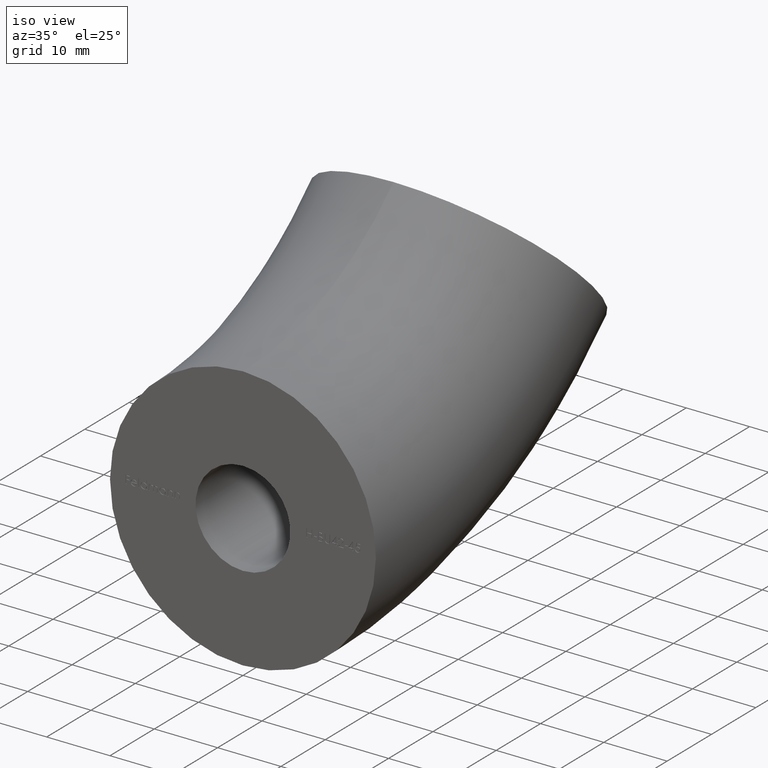
[diagram: clean part render]
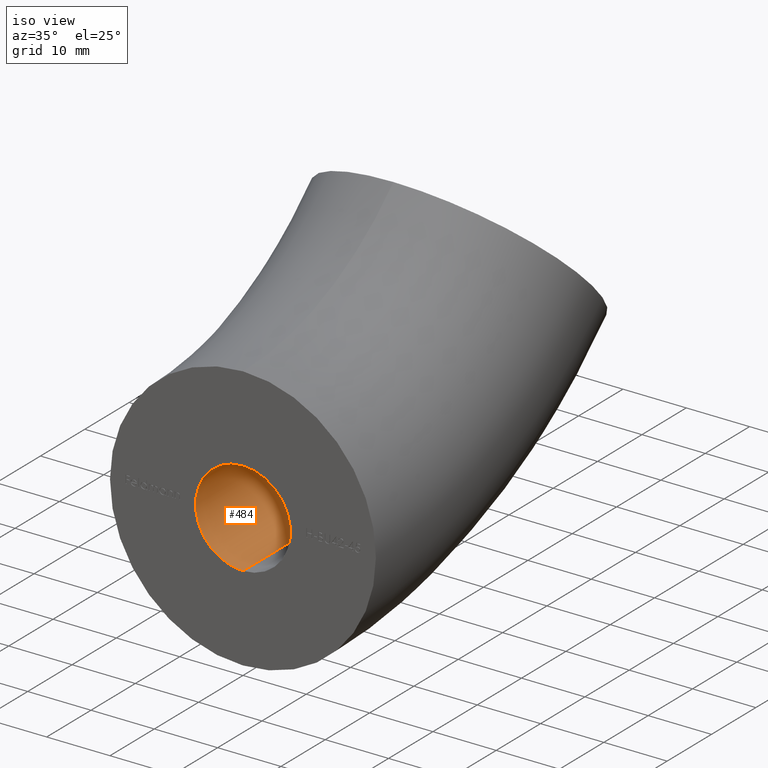
[diagram: same view with one face highlighted and labeled with its STEP entity id]
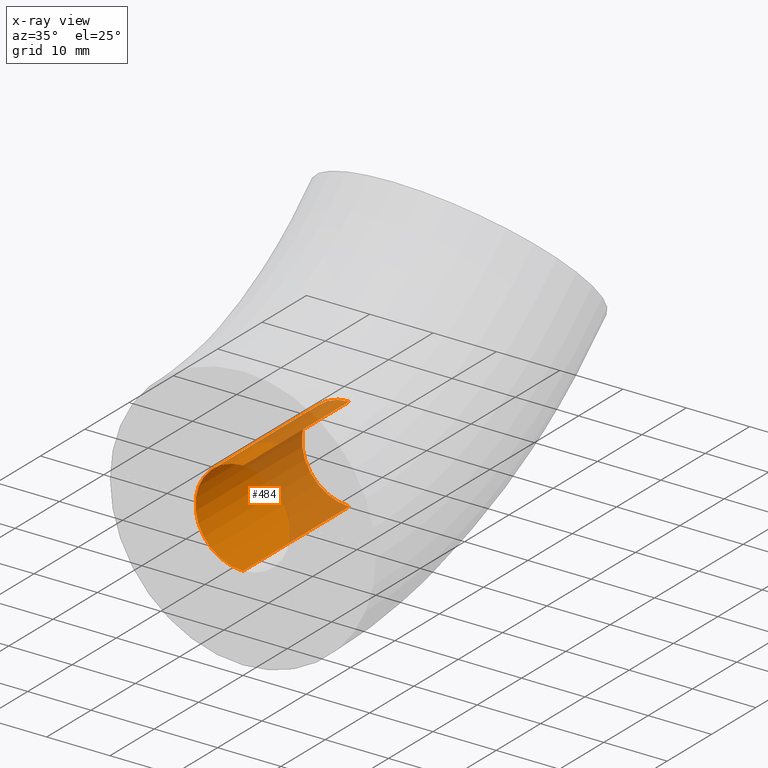
[diagram: x-ray of the same camera — body ghosted, the highlighted face saturated]
A machine part, iso view. The second image highlights one B-rep face of the part: STEP entity #484.
The next image is the same camera in x-ray: the body ghosted, the highlighted face saturated — about 41% of this face is hidden behind the body in this view.
In plain terms, the highlighted cylindrical surface (partial cylindrical patch) has radius 7.5 mm, axis along (-0, -1, -0).
Its self-contained STEP definition (entity closure, byte-faithful):
#204 = CARTESIAN_POINT ( 'NONE',  ( 9.184850993605134139E-16, -6.368163355566210744E-16, 7.499999999999987566 ) ) ;
#283 = EDGE_CURVE ( 'NONE', #1979, #11252, #2507, .T. ) ;
#373 = DIRECTION ( 'NONE',  ( 0.000000000000000000, 0.000000000000000000, -1.000000000000000000 ) ) ;
#484 = ADVANCED_FACE ( 'NONE', ( #1259 ), #2923, .F. ) ;
#648 = ORIENTED_EDGE ( 'NONE', *, *, #283, .F. ) ;
#736 = DIRECTION ( 'NONE',  ( -0.000000000000000000, -1.000000000000000000, -0.000000000000000000 ) ) ;
#893 = AXIS2_PLACEMENT_3D ( 'NONE', #1216, #3808, #373 ) ;
#1216 = CARTESIAN_POINT ( 'NONE',  ( 0.000000000000000000, -6.368163355566210744E-16, 0.000000000000000000 ) ) ;
#1259 = FACE_OUTER_BOUND ( 'NONE', #5515, .T. ) ;
#1265 = DIRECTION ( 'NONE',  ( -0.000000000000000000, -1.000000000000000000, -0.000000000000000000 ) ) ;
#1421 = AXIS2_PLACEMENT_3D ( 'NONE', #1545, #8620, #10385 ) ;
#1545 = CARTESIAN_POINT ( 'NONE',  ( 0.000000000000000000, 23.99999999999999289, 0.000000000000000000 ) ) ;
#1593 = CARTESIAN_POINT ( 'NONE',  ( 0.000000000000000000, 0.000000000000000000, -7.499999999999985789 ) ) ;
#1705 = CIRCLE ( 'NONE', #893, 7.499999999999987566 ) ;
#1979 = VERTEX_POINT ( 'NONE', #8856 ) ;
#2507 = LINE ( 'NONE', #1593, #5984 ) ;
#2923 = CYLINDRICAL_SURFACE ( 'NONE', #5191, 7.499999999999985789 ) ;
#2980 = CARTESIAN_POINT ( 'NONE',  ( 0.000000000000000000, 0.000000000000000000, 0.000000000000000000 ) ) ;
#3598 = LINE ( 'NONE', #9961, #7051 ) ;
#3808 = DIRECTION ( 'NONE',  ( -0.000000000000000000, -1.000000000000000000, -0.000000000000000000 ) ) ;
#5191 = AXIS2_PLACEMENT_3D ( 'NONE', #2980, #1265, #7520 ) ;
#5515 = EDGE_LOOP ( 'NONE', ( #10698, #5804, #8031, #648 ) ) ;
#5804 = ORIENTED_EDGE ( 'NONE', *, *, #5884, .T. ) ;
#5884 = EDGE_CURVE ( 'NONE', #7291, #10016, #3598, .T. ) ;
#5984 = VECTOR ( 'NONE', #736, 1000.000000000000000 ) ;
#6014 = CIRCLE ( 'NONE', #1421, 7.499999999999984901 ) ;
#6435 = DIRECTION ( 'NONE',  ( -0.000000000000000000, -1.000000000000000000, -0.000000000000000000 ) ) ;
#6730 = CARTESIAN_POINT ( 'NONE',  ( 9.184850993605130195E-16, 23.99999999999999289, 7.499999999999984901 ) ) ;
#7051 = VECTOR ( 'NONE', #6435, 1000.000000000000000 ) ;
#7291 = VERTEX_POINT ( 'NONE', #6730 ) ;
#7520 = DIRECTION ( 'NONE',  ( 0.000000000000000000, 0.000000000000000000, -1.000000000000000000 ) ) ;
#8031 = ORIENTED_EDGE ( 'NONE', *, *, #9243, .T. ) ;
#8551 = CARTESIAN_POINT ( 'NONE',  ( 0.000000000000000000, -6.368163355566210744E-16, -7.499999999999987566 ) ) ;
#8620 = DIRECTION ( 'NONE',  ( -0.000000000000000000, -1.000000000000000000, -0.000000000000000000 ) ) ;
#8856 = CARTESIAN_POINT ( 'NONE',  ( 0.000000000000000000, 23.99999999999999289, -7.499999999999984901 ) ) ;
#9011 = EDGE_CURVE ( 'NONE', #7291, #1979, #6014, .T. ) ;
#9243 = EDGE_CURVE ( 'NONE', #10016, #11252, #1705, .T. ) ;
#9961 = CARTESIAN_POINT ( 'NONE',  ( 9.184850993605132167E-16, 0.000000000000000000, 7.499999999999985789 ) ) ;
#10016 = VERTEX_POINT ( 'NONE', #204 ) ;
#10385 = DIRECTION ( 'NONE',  ( 0.000000000000000000, 0.000000000000000000, -1.000000000000000000 ) ) ;
#10698 = ORIENTED_EDGE ( 'NONE', *, *, #9011, .F. ) ;
#11252 = VERTEX_POINT ( 'NONE', #8551 ) ;